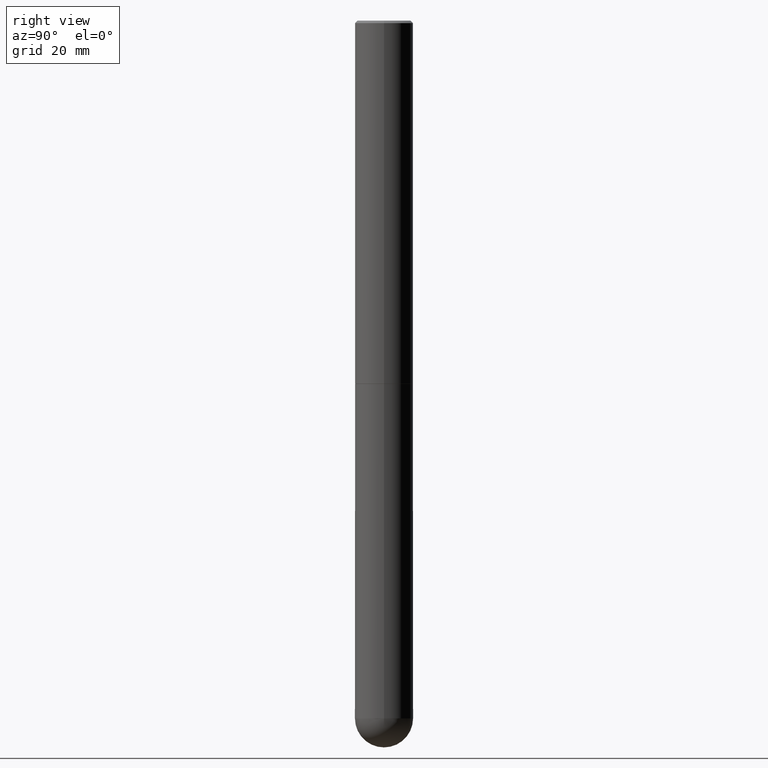
[diagram: clean part render]
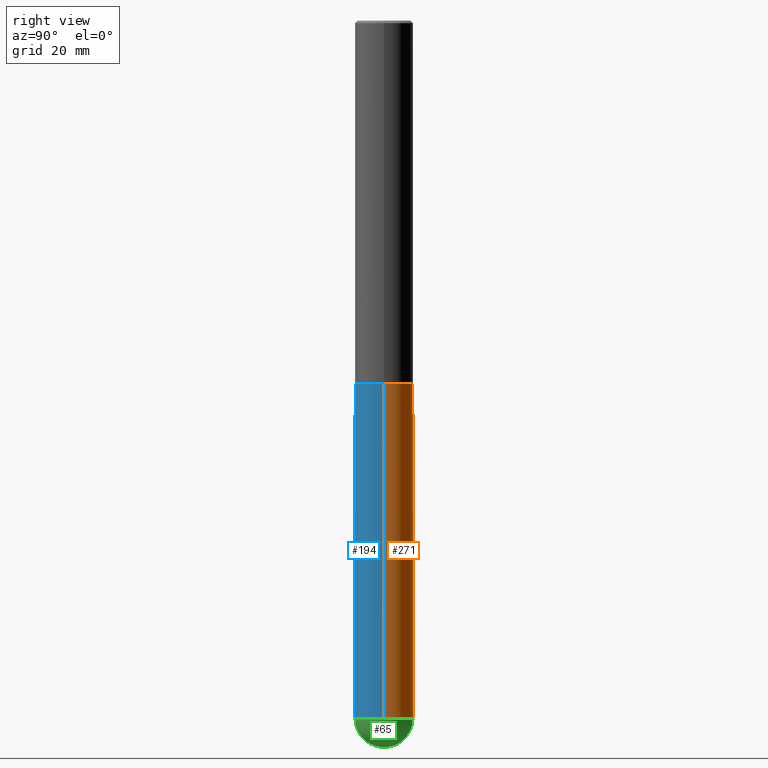
[diagram: same view with three faces highlighted in distinct colors, each labeled with its STEP entity id]
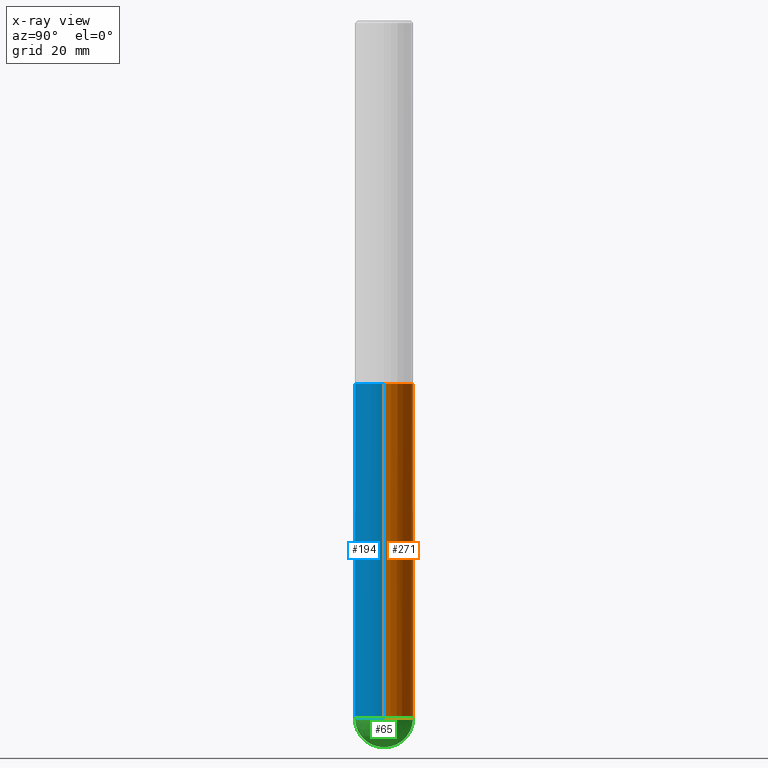
[diagram: x-ray of the same camera — body ghosted, the three highlighted faces saturated]
A machine part, right view with three faces highlighted in distinct colors.
The next image is the same camera in x-ray (body ghosted, the three faces saturated) — at least one of them is partly hidden behind the body in this view.
Their STEP definitions:

[orange] entity #271 — the highlighted cylindrical surface (edge-blend (fillet) strip) has radius 5.9995 mm, axis along (-0, 0, 1).
#2 = VERTEX_POINT ( 'NONE', #254 ) ;
#14 = CIRCLE ( 'NONE', #382, 0.2361999999999999933 ) ;
#15 = CARTESIAN_POINT ( 'NONE',  ( -0.2361999999999999933, 1.678301941865356591E-15, -1.161852468318208757E-29 ) ) ;
#17 = EDGE_CURVE ( 'NONE', #97, #104, #317, .T. ) ;
#20 = CARTESIAN_POINT ( 'NONE',  ( 0.000000000000000000, 0.000000000000000000, 0.000000000000000000 ) ) ;
#35 = CARTESIAN_POINT ( 'NONE',  ( 0.2361999999999999933, -1.670115183622230141E-14, -5.669299999999999784 ) ) ;
#52 = AXIS2_PLACEMENT_3D ( 'NONE', #163, #68, #193 ) ;
#61 = EDGE_CURVE ( 'NONE', #157, #2, #229, .T. ) ;
#68 = DIRECTION ( 'NONE',  ( -2.445468806185136597E-29, 3.491481338843145583E-15, 1.000000000000000000 ) ) ;
#69 = ORIENTED_EDGE ( 'NONE', *, *, #172, .T. ) ;
#76 = DIRECTION ( 'NONE',  ( -2.445468806185136597E-29, 3.491481338843145583E-15, 1.000000000000000000 ) ) ;
#78 = CARTESIAN_POINT ( 'NONE',  ( -0.2361999999999999933, -1.337347410988744218E-14, -2.952700000000000102 ) ) ;
#79 = LINE ( 'NONE', #15, #80 ) ;
#80 = VECTOR ( 'NONE', #364, 39.37007874015748143 ) ;
#97 = VERTEX_POINT ( 'NONE', #335 ) ;
#104 = VERTEX_POINT ( 'NONE', #356 ) ;
#124 = VECTOR ( 'NONE', #281, 39.37007874015748143 ) ;
#157 = VERTEX_POINT ( 'NONE', #35 ) ;
#160 = CARTESIAN_POINT ( 'NONE',  ( 1.386409630290539494E-28, -1.979425515430344370E-14, -5.669299999999999784 ) ) ;
#163 = CARTESIAN_POINT ( 'NONE',  ( 1.386409630290539494E-28, -1.979425515430344370E-14, -5.669299999999999784 ) ) ;
#165 = AXIS2_PLACEMENT_3D ( 'NONE', #20, #76, #279 ) ;
#170 = CIRCLE ( 'NONE', #52, 0.2361999999999999933 ) ;
#172 = EDGE_CURVE ( 'NONE', #157, #97, #170, .T. ) ;
#185 = ORIENTED_EDGE ( 'NONE', *, *, #17, .T. ) ;
#193 = DIRECTION ( 'NONE',  ( 1.000000000000000000, -6.982962677686273021E-15, 0.000000000000000000 ) ) ;
#213 = DIRECTION ( 'NONE',  ( -2.445468806185136597E-29, 3.491481338843145583E-15, 1.000000000000000000 ) ) ;
#215 = DIRECTION ( 'NONE',  ( 1.000000000000000000, -6.982962677686273021E-15, 0.000000000000000000 ) ) ;
#219 = EDGE_CURVE ( 'NONE', #2, #292, #14, .T. ) ;
#229 = LINE ( 'NONE', #367, #124 ) ;
#252 = EDGE_CURVE ( 'NONE', #104, #292, #79, .T. ) ;
#254 = CARTESIAN_POINT ( 'NONE',  ( 0.2361999999999999933, -1.195867273367164996E-14, -2.952700000000000102 ) ) ;
#255 = CARTESIAN_POINT ( 'NONE',  ( 7.220735744022852519E-29, -1.030929694920215502E-14, -2.952700000000000102 ) ) ;
#261 = DIRECTION ( 'NONE',  ( -2.445468806185136597E-29, 3.491481338843145583E-15, 1.000000000000000000 ) ) ;
#265 = FACE_OUTER_BOUND ( 'NONE', #266, .T. ) ;
#266 = EDGE_LOOP ( 'NONE', ( #185, #270, #398, #327, #69 ) ) ;
#270 = ORIENTED_EDGE ( 'NONE', *, *, #252, .T. ) ;
#271 = ADVANCED_FACE ( 'NONE', ( #265 ), #368, .T. ) ;
#279 = DIRECTION ( 'NONE',  ( 1.000000000000000000, -6.982962677686266711E-15, 4.876176775795936353E-29 ) ) ;
#281 = DIRECTION ( 'NONE',  ( -2.445468806185136877E-29, 3.491481338843145188E-15, 1.000000000000000000 ) ) ;
#292 = VERTEX_POINT ( 'NONE', #78 ) ;
#306 = DIRECTION ( 'NONE',  ( 1.000000000000000000, -6.982962677686265133E-15, 0.000000000000000000 ) ) ;
#317 = CIRCLE ( 'NONE', #370, 0.2361999999999999933 ) ;
#327 = ORIENTED_EDGE ( 'NONE', *, *, #61, .F. ) ;
#335 = CARTESIAN_POINT ( 'NONE',  ( 1.649375784469633984E-15, 0.2361999999999800925, -5.669300000000000672 ) ) ;
#356 = CARTESIAN_POINT ( 'NONE',  ( -0.2361999999999999933, -1.337347410988744691E-14, -5.669299999999999784 ) ) ;
#364 = DIRECTION ( 'NONE',  ( -2.445468806185136877E-29, 3.491481338843145188E-15, 1.000000000000000000 ) ) ;
#367 = CARTESIAN_POINT ( 'NONE',  ( 0.2361999999999999933, -1.649375784469496131E-15, 1.151752954443000088E-29 ) ) ;
#368 = CYLINDRICAL_SURFACE ( 'NONE', #165, 0.2361999999999999933 ) ;
#370 = AXIS2_PLACEMENT_3D ( 'NONE', #160, #213, #215 ) ;
#382 = AXIS2_PLACEMENT_3D ( 'NONE', #255, #261, #306 ) ;
#398 = ORIENTED_EDGE ( 'NONE', *, *, #219, .F. ) ;

[blue] entity #194 — the highlighted cylindrical surface (edge-blend (fillet) strip) has radius 5.9995 mm, axis along (-0, 0, 1).
#2 = VERTEX_POINT ( 'NONE', #254 ) ;
#4 = FACE_OUTER_BOUND ( 'NONE', #307, .T. ) ;
#5 = DIRECTION ( 'NONE',  ( -2.445468806185136597E-29, 3.491481338843145583E-15, 1.000000000000000000 ) ) ;
#15 = CARTESIAN_POINT ( 'NONE',  ( -0.2361999999999999933, 1.678301941865356591E-15, -1.161852468318208757E-29 ) ) ;
#35 = CARTESIAN_POINT ( 'NONE',  ( 0.2361999999999999933, -1.670115183622230141E-14, -5.669299999999999784 ) ) ;
#58 = ORIENTED_EDGE ( 'NONE', *, *, #296, .T. ) ;
#60 = ORIENTED_EDGE ( 'NONE', *, *, #334, .T. ) ;
#61 = EDGE_CURVE ( 'NONE', #157, #2, #229, .T. ) ;
#71 = DIRECTION ( 'NONE',  ( 1.000000000000000000, -6.982962677686265133E-15, 0.000000000000000000 ) ) ;
#78 = CARTESIAN_POINT ( 'NONE',  ( -0.2361999999999999933, -1.337347410988744218E-14, -2.952700000000000102 ) ) ;
#79 = LINE ( 'NONE', #15, #80 ) ;
#80 = VECTOR ( 'NONE', #364, 39.37007874015748143 ) ;
#99 = DIRECTION ( 'NONE',  ( -2.445468806185136597E-29, 3.491481338843145583E-15, 1.000000000000000000 ) ) ;
#104 = VERTEX_POINT ( 'NONE', #356 ) ;
#124 = VECTOR ( 'NONE', #281, 39.37007874015748143 ) ;
#125 = CIRCLE ( 'NONE', #285, 0.2361999999999999933 ) ;
#139 = EDGE_CURVE ( 'NONE', #292, #2, #125, .T. ) ;
#142 = CIRCLE ( 'NONE', #336, 0.2361999999999999933 ) ;
#150 = DIRECTION ( 'NONE',  ( -2.445468806185136597E-29, 3.491481338843145583E-15, 1.000000000000000000 ) ) ;
#156 = AXIS2_PLACEMENT_3D ( 'NONE', #314, #340, #232 ) ;
#157 = VERTEX_POINT ( 'NONE', #35 ) ;
#178 = ORIENTED_EDGE ( 'NONE', *, *, #61, .T. ) ;
#183 = AXIS2_PLACEMENT_3D ( 'NONE', #300, #99, #227 ) ;
#194 = ADVANCED_FACE ( 'NONE', ( #4 ), #197, .T. ) ;
#197 = CYLINDRICAL_SURFACE ( 'NONE', #183, 0.2361999999999999933 ) ;
#210 = DIRECTION ( 'NONE',  ( 1.000000000000000000, -6.982962677686273021E-15, 0.000000000000000000 ) ) ;
#227 = DIRECTION ( 'NONE',  ( 1.000000000000000000, -6.982962677686266711E-15, 4.876176775795936353E-29 ) ) ;
#229 = LINE ( 'NONE', #367, #124 ) ;
#232 = DIRECTION ( 'NONE',  ( 1.000000000000000000, -6.982962677686273021E-15, 0.000000000000000000 ) ) ;
#233 = ORIENTED_EDGE ( 'NONE', *, *, #252, .F. ) ;
#252 = EDGE_CURVE ( 'NONE', #104, #292, #79, .T. ) ;
#254 = CARTESIAN_POINT ( 'NONE',  ( 0.2361999999999999933, -1.195867273367164996E-14, -2.952700000000000102 ) ) ;
#275 = CARTESIAN_POINT ( 'NONE',  ( 1.386409630290539494E-28, -1.979425515430344370E-14, -5.669299999999999784 ) ) ;
#281 = DIRECTION ( 'NONE',  ( -2.445468806185136877E-29, 3.491481338843145188E-15, 1.000000000000000000 ) ) ;
#285 = AXIS2_PLACEMENT_3D ( 'NONE', #361, #5, #71 ) ;
#292 = VERTEX_POINT ( 'NONE', #78 ) ;
#296 = EDGE_CURVE ( 'NONE', #409, #157, #142, .T. ) ;
#300 = CARTESIAN_POINT ( 'NONE',  ( 0.000000000000000000, 0.000000000000000000, 0.000000000000000000 ) ) ;
#307 = EDGE_LOOP ( 'NONE', ( #233, #60, #58, #178, #330 ) ) ;
#311 = CIRCLE ( 'NONE', #156, 0.2361999999999999933 ) ;
#314 = CARTESIAN_POINT ( 'NONE',  ( 1.386409630290539494E-28, -1.979425515430344370E-14, -5.669299999999999784 ) ) ;
#330 = ORIENTED_EDGE ( 'NONE', *, *, #139, .F. ) ;
#334 = EDGE_CURVE ( 'NONE', #104, #409, #311, .T. ) ;
#336 = AXIS2_PLACEMENT_3D ( 'NONE', #275, #150, #210 ) ;
#340 = DIRECTION ( 'NONE',  ( -2.445468806185136597E-29, 3.491481338843145583E-15, 1.000000000000000000 ) ) ;
#356 = CARTESIAN_POINT ( 'NONE',  ( -0.2361999999999999933, -1.337347410988744691E-14, -5.669299999999999784 ) ) ;
#361 = CARTESIAN_POINT ( 'NONE',  ( 7.220735744022852519E-29, -1.030929694920215502E-14, -2.952700000000000102 ) ) ;
#364 = DIRECTION ( 'NONE',  ( -2.445468806185136877E-29, 3.491481338843145188E-15, 1.000000000000000000 ) ) ;
#367 = CARTESIAN_POINT ( 'NONE',  ( 0.2361999999999999933, -1.649375784469496131E-15, 1.151752954443000088E-29 ) ) ;
#372 = CARTESIAN_POINT ( 'NONE',  ( -1.678301941865220316E-15, -0.2362000000000201716, -5.669299999999998896 ) ) ;
#409 = VERTEX_POINT ( 'NONE', #372 ) ;

[green] entity #65 — the highlighted spherical surface has radius 5.9995 mm.
#9 = CARTESIAN_POINT ( 'NONE',  ( 1.353297652499150981E-28, -2.026843752244349558E-14, -5.669299999999999784 ) ) ;
#13 = DIRECTION ( 'NONE',  ( -1.000000000000000000, 7.105427357601001070E-15, -4.926315508542082329E-29 ) ) ;
#28 = CIRCLE ( 'NONE', #342, 0.2362000000000002709 ) ;
#33 = ORIENTED_EDGE ( 'NONE', *, *, #296, .F. ) ;
#35 = CARTESIAN_POINT ( 'NONE',  ( 0.2361999999999999933, -1.670115183622230141E-14, -5.669299999999999784 ) ) ;
#39 = CARTESIAN_POINT ( 'NONE',  ( 1.412069577088764835E-28, -2.107866233598031943E-14, -5.905499999999999972 ) ) ;
#52 = AXIS2_PLACEMENT_3D ( 'NONE', #163, #68, #193 ) ;
#65 = ADVANCED_FACE ( 'NONE', ( #406 ), #244, .T. ) ;
#68 = DIRECTION ( 'NONE',  ( -2.445468806185136597E-29, 3.491481338843145583E-15, 1.000000000000000000 ) ) ;
#86 = VERTEX_POINT ( 'NONE', #39 ) ;
#97 = VERTEX_POINT ( 'NONE', #335 ) ;
#118 = CIRCLE ( 'NONE', #176, 0.2362000000000002709 ) ;
#121 = DIRECTION ( 'NONE',  ( -1.000000000000000000, 6.982962677686265922E-15, -4.883557194083112901E-29 ) ) ;
#137 = ORIENTED_EDGE ( 'NONE', *, *, #305, .T. ) ;
#138 = DIRECTION ( 'NONE',  ( -7.105427357601001070E-15, -1.000000000000000000, 0.000000000000000000 ) ) ;
#141 = AXIS2_PLACEMENT_3D ( 'NONE', #9, #121, #392 ) ;
#142 = CIRCLE ( 'NONE', #336, 0.2361999999999999933 ) ;
#150 = DIRECTION ( 'NONE',  ( -2.445468806185136597E-29, 3.491481338843145583E-15, 1.000000000000000000 ) ) ;
#157 = VERTEX_POINT ( 'NONE', #35 ) ;
#163 = CARTESIAN_POINT ( 'NONE',  ( 1.386409630290539494E-28, -1.979425515430344370E-14, -5.669299999999999784 ) ) ;
#170 = CIRCLE ( 'NONE', #52, 0.2361999999999999933 ) ;
#172 = EDGE_CURVE ( 'NONE', #157, #97, #170, .T. ) ;
#176 = AXIS2_PLACEMENT_3D ( 'NONE', #240, #13, #138 ) ;
#193 = DIRECTION ( 'NONE',  ( 1.000000000000000000, -6.982962677686273021E-15, 0.000000000000000000 ) ) ;
#204 = ORIENTED_EDGE ( 'NONE', *, *, #394, .F. ) ;
#206 = CARTESIAN_POINT ( 'NONE',  ( 1.353297652499150981E-28, -2.026843752244349558E-14, -5.669299999999999784 ) ) ;
#210 = DIRECTION ( 'NONE',  ( 1.000000000000000000, -6.982962677686273021E-15, 0.000000000000000000 ) ) ;
#240 = CARTESIAN_POINT ( 'NONE',  ( 1.353297652499150981E-28, -2.026843752244349558E-14, -5.669299999999999784 ) ) ;
#244 = SPHERICAL_SURFACE ( 'NONE', #141, 0.2362000000000002709 ) ;
#248 = EDGE_LOOP ( 'NONE', ( #204, #137, #298, #33 ) ) ;
#275 = CARTESIAN_POINT ( 'NONE',  ( 1.386409630290539494E-28, -1.979425515430344370E-14, -5.669299999999999784 ) ) ;
#296 = EDGE_CURVE ( 'NONE', #409, #157, #142, .T. ) ;
#298 = ORIENTED_EDGE ( 'NONE', *, *, #172, .F. ) ;
#305 = EDGE_CURVE ( 'NONE', #86, #97, #28, .T. ) ;
#335 = CARTESIAN_POINT ( 'NONE',  ( 1.649375784469633984E-15, 0.2361999999999800925, -5.669300000000000672 ) ) ;
#336 = AXIS2_PLACEMENT_3D ( 'NONE', #275, #150, #210 ) ;
#342 = AXIS2_PLACEMENT_3D ( 'NONE', #206, #399, #405 ) ;
#372 = CARTESIAN_POINT ( 'NONE',  ( -1.678301941865220316E-15, -0.2362000000000201716, -5.669299999999998896 ) ) ;
#392 = DIRECTION ( 'NONE',  ( 6.982962677686265922E-15, 1.000000000000000000, -4.626330217890364603E-15 ) ) ;
#394 = EDGE_CURVE ( 'NONE', #86, #409, #118, .T. ) ;
#399 = DIRECTION ( 'NONE',  ( 1.000000000000000000, -6.982962677686265922E-15, 4.883557194083112340E-29 ) ) ;
#405 = DIRECTION ( 'NONE',  ( 6.982962677686265922E-15, 1.000000000000000000, 0.000000000000000000 ) ) ;
#406 = FACE_OUTER_BOUND ( 'NONE', #248, .T. ) ;
#409 = VERTEX_POINT ( 'NONE', #372 ) ;